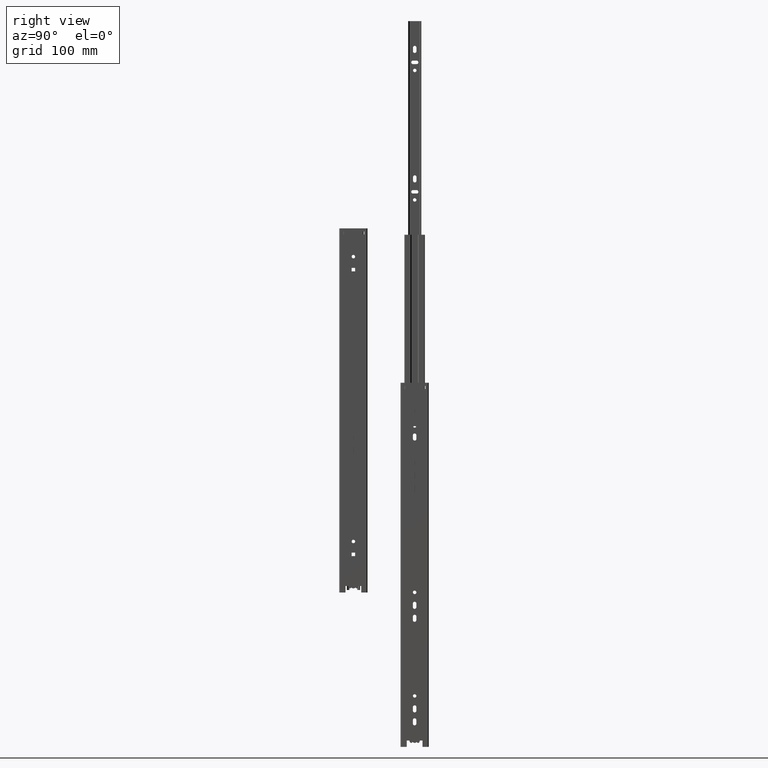
[diagram: clean part render]
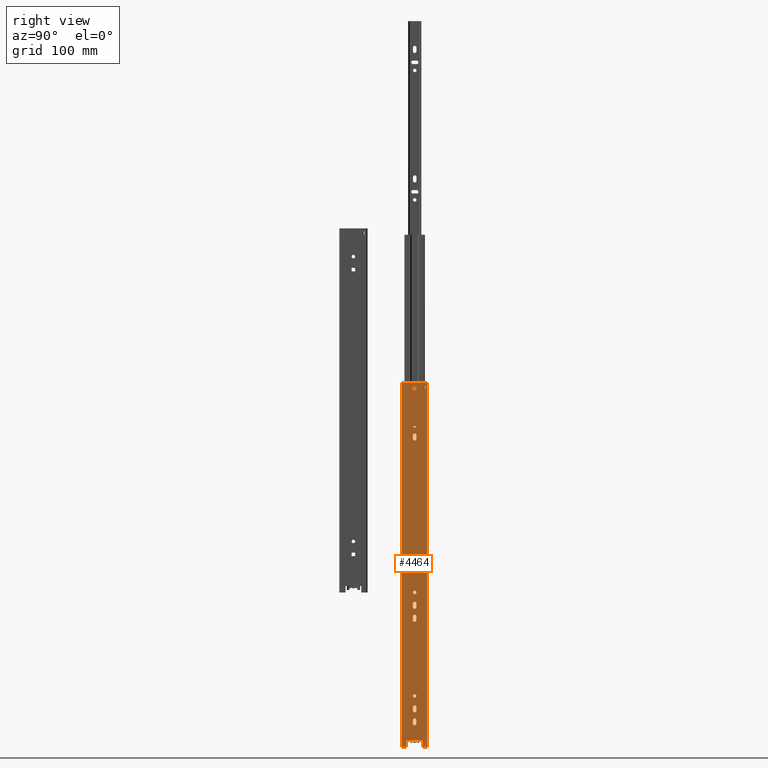
[diagram: same view with one face highlighted and labeled with its STEP entity id]
A machine part, right view. The second image highlights one B-rep face of the part: STEP entity #4464.
In plain terms, the highlighted planar face has unit normal (1, 0, 0).
Its self-contained STEP definition (entity closure, byte-faithful):
#195=FACE_BOUND('',#747,.T.);
#196=FACE_BOUND('',#748,.T.);
#197=FACE_BOUND('',#749,.T.);
#198=FACE_BOUND('',#750,.T.);
#199=FACE_BOUND('',#751,.T.);
#200=FACE_BOUND('',#752,.T.);
#201=FACE_BOUND('',#753,.T.);
#202=FACE_BOUND('',#754,.T.);
#203=FACE_BOUND('',#755,.T.);
#204=FACE_BOUND('',#756,.T.);
#205=FACE_BOUND('',#757,.T.);
#206=FACE_BOUND('',#758,.T.);
#207=FACE_BOUND('',#759,.T.);
#208=FACE_BOUND('',#760,.T.);
#209=FACE_BOUND('',#761,.T.);
#270=CIRCLE('',#4693,2.15);
#271=CIRCLE('',#4696,2.15);
#272=CIRCLE('',#4699,2.15);
#273=CIRCLE('',#4702,2.15);
#274=CIRCLE('',#4705,2.15);
#275=CIRCLE('',#4708,2.15);
#276=CIRCLE('',#4711,2.15);
#277=CIRCLE('',#4714,2.15);
#278=CIRCLE('',#4721,2.15);
#279=CIRCLE('',#4723,2.15);
#280=CIRCLE('',#4725,2.15);
#281=CIRCLE('',#4727,2.15);
#282=CIRCLE('',#4733,2.4);
#283=CIRCLE('',#4735,2.15);
#284=CIRCLE('',#4738,2.15);
#285=CIRCLE('',#4741,2.15);
#286=CIRCLE('',#4744,2.15);
#287=CIRCLE('',#4747,2.15);
#288=CIRCLE('',#4750,2.15);
#289=CIRCLE('',#4753,2.14999999999999);
#290=CIRCLE('',#4756,2.15);
#488=FACE_OUTER_BOUND('',#746,.T.);
#746=EDGE_LOOP('',(#3316,#3317,#3318,#3319,#3320,#3321,#3322,#3323));
#747=EDGE_LOOP('',(#3324,#3325,#3326,#3327));
#748=EDGE_LOOP('',(#3328,#3329,#3330,#3331));
#749=EDGE_LOOP('',(#3332,#3333,#3334,#3335));
#750=EDGE_LOOP('',(#3336,#3337,#3338,#3339));
#751=EDGE_LOOP('',(#3340,#3341,#3342,#3343));
#752=EDGE_LOOP('',(#3344));
#753=EDGE_LOOP('',(#3345));
#754=EDGE_LOOP('',(#3346));
#755=EDGE_LOOP('',(#3347));
#756=EDGE_LOOP('',(#3348,#3349,#3350,#3351));
#757=EDGE_LOOP('',(#3352));
#758=EDGE_LOOP('',(#3353,#3354,#3355,#3356));
#759=EDGE_LOOP('',(#3357,#3358,#3359,#3360));
#760=EDGE_LOOP('',(#3361,#3362,#3363,#3364));
#761=EDGE_LOOP('',(#3365,#3366,#3367,#3368));
#1012=LINE('',#6645,#1476);
#1014=LINE('',#6649,#1478);
#1017=LINE('',#6654,#1481);
#1018=LINE('',#6657,#1482);
#1028=LINE('',#6687,#1492);
#1031=LINE('',#6694,#1495);
#1034=LINE('',#6703,#1498);
#1037=LINE('',#6710,#1501);
#1040=LINE('',#6719,#1504);
#1043=LINE('',#6726,#1507);
#1046=LINE('',#6735,#1510);
#1049=LINE('',#6742,#1513);
#1051=LINE('',#6747,#1515);
#1053=LINE('',#6751,#1517);
#1055=LINE('',#6755,#1519);
#1057=LINE('',#6758,#1521);
#1059=LINE('',#6775,#1523);
#1061=LINE('',#6779,#1525);
#1063=LINE('',#6783,#1527);
#1065=LINE('',#6786,#1529);
#1068=LINE('',#6798,#1532);
#1071=LINE('',#6805,#1535);
#1074=LINE('',#6814,#1538);
#1077=LINE('',#6821,#1541);
#1080=LINE('',#6830,#1544);
#1083=LINE('',#6837,#1547);
#1086=LINE('',#6846,#1550);
#1089=LINE('',#6853,#1553);
#1097=LINE('',#6877,#1561);
#1104=LINE('',#6895,#1568);
#1105=LINE('',#6898,#1569);
#1106=LINE('',#6899,#1570);
#1476=VECTOR('',#5236,19.4999999999977);
#1478=VECTOR('',#5240,7.99999999999997);
#1481=VECTOR('',#5245,7.99999999999997);
#1482=VECTOR('',#5248,6.25000000000089);
#1492=VECTOR('',#5272,4.49999999999996);
#1495=VECTOR('',#5281,4.49999999999996);
#1498=VECTOR('',#5290,4.49999999999999);
#1501=VECTOR('',#5299,4.49999999999999);
#1504=VECTOR('',#5308,4.49999999999998);
#1507=VECTOR('',#5317,4.50000000000001);
#1510=VECTOR('',#5326,4.49999999999999);
#1513=VECTOR('',#5335,4.49999999999999);
#1515=VECTOR('',#5339,4.8);
#1517=VECTOR('',#5343,3.70000000000001);
#1519=VECTOR('',#5347,4.8);
#1521=VECTOR('',#5351,3.70000000000001);
#1523=VECTOR('',#5371,4.8);
#1525=VECTOR('',#5375,3.70000000000001);
#1527=VECTOR('',#5379,4.80000000000001);
#1529=VECTOR('',#5383,3.70000000000001);
#1532=VECTOR('',#5396,4.49999999999999);
#1535=VECTOR('',#5405,4.49999999999999);
#1538=VECTOR('',#5414,4.49999999999999);
#1541=VECTOR('',#5423,4.49999999999996);
#1544=VECTOR('',#5432,4.49999999999999);
#1547=VECTOR('',#5441,4.49999999999999);
#1550=VECTOR('',#5450,4.49999999999996);
#1553=VECTOR('',#5459,4.49999999999996);
#1561=VECTOR('',#5477,6.25000000000089);
#1568=VECTOR('',#5496,450.);
#1569=VECTOR('',#5499,31.9999999999994);
#1570=VECTOR('',#5500,450.);
#1958=VERTEX_POINT('',#6642);
#1959=VERTEX_POINT('',#6644);
#1960=VERTEX_POINT('',#6648);
#1961=VERTEX_POINT('',#6652);
#1962=VERTEX_POINT('',#6656);
#1973=VERTEX_POINT('',#6680);
#1974=VERTEX_POINT('',#6682);
#1975=VERTEX_POINT('',#6686);
#1976=VERTEX_POINT('',#6690);
#1977=VERTEX_POINT('',#6696);
#1978=VERTEX_POINT('',#6698);
#1979=VERTEX_POINT('',#6702);
#1980=VERTEX_POINT('',#6706);
#1981=VERTEX_POINT('',#6712);
#1982=VERTEX_POINT('',#6714);
#1983=VERTEX_POINT('',#6718);
#1984=VERTEX_POINT('',#6722);
#1985=VERTEX_POINT('',#6728);
#1986=VERTEX_POINT('',#6730);
#1987=VERTEX_POINT('',#6734);
#1988=VERTEX_POINT('',#6738);
#1989=VERTEX_POINT('',#6744);
#1990=VERTEX_POINT('',#6746);
#1991=VERTEX_POINT('',#6750);
#1992=VERTEX_POINT('',#6754);
#1993=VERTEX_POINT('',#6760);
#1994=VERTEX_POINT('',#6763);
#1995=VERTEX_POINT('',#6766);
#1996=VERTEX_POINT('',#6769);
#1997=VERTEX_POINT('',#6772);
#1998=VERTEX_POINT('',#6774);
#1999=VERTEX_POINT('',#6778);
#2000=VERTEX_POINT('',#6782);
#2001=VERTEX_POINT('',#6788);
#2002=VERTEX_POINT('',#6791);
#2003=VERTEX_POINT('',#6793);
#2004=VERTEX_POINT('',#6797);
#2005=VERTEX_POINT('',#6801);
#2006=VERTEX_POINT('',#6807);
#2007=VERTEX_POINT('',#6809);
#2008=VERTEX_POINT('',#6813);
#2009=VERTEX_POINT('',#6817);
#2010=VERTEX_POINT('',#6823);
#2011=VERTEX_POINT('',#6825);
#2012=VERTEX_POINT('',#6829);
#2013=VERTEX_POINT('',#6833);
#2014=VERTEX_POINT('',#6839);
#2015=VERTEX_POINT('',#6841);
#2016=VERTEX_POINT('',#6845);
#2017=VERTEX_POINT('',#6849);
#2028=VERTEX_POINT('',#6875);
#2033=VERTEX_POINT('',#6893);
#2034=VERTEX_POINT('',#6897);
#2401=EDGE_CURVE('',#1959,#1958,#1012,.T.);
#2403=EDGE_CURVE('',#1960,#1959,#1014,.T.);
#2406=EDGE_CURVE('',#1958,#1961,#1017,.T.);
#2407=EDGE_CURVE('',#1960,#1962,#1018,.T.);
#2420=EDGE_CURVE('',#1974,#1973,#270,.T.);
#2422=EDGE_CURVE('',#1975,#1974,#1028,.T.);
#2424=EDGE_CURVE('',#1976,#1975,#271,.T.);
#2426=EDGE_CURVE('',#1973,#1976,#1031,.T.);
#2428=EDGE_CURVE('',#1978,#1977,#272,.T.);
#2430=EDGE_CURVE('',#1979,#1978,#1034,.T.);
#2432=EDGE_CURVE('',#1980,#1979,#273,.T.);
#2434=EDGE_CURVE('',#1977,#1980,#1037,.T.);
#2436=EDGE_CURVE('',#1982,#1981,#274,.T.);
#2438=EDGE_CURVE('',#1983,#1982,#1040,.T.);
#2440=EDGE_CURVE('',#1984,#1983,#275,.T.);
#2442=EDGE_CURVE('',#1981,#1984,#1043,.T.);
#2444=EDGE_CURVE('',#1986,#1985,#276,.T.);
#2446=EDGE_CURVE('',#1987,#1986,#1046,.T.);
#2448=EDGE_CURVE('',#1988,#1987,#277,.T.);
#2450=EDGE_CURVE('',#1985,#1988,#1049,.T.);
#2452=EDGE_CURVE('',#1990,#1989,#1051,.T.);
#2454=EDGE_CURVE('',#1991,#1990,#1053,.T.);
#2456=EDGE_CURVE('',#1992,#1991,#1055,.T.);
#2458=EDGE_CURVE('',#1989,#1992,#1057,.T.);
#2459=EDGE_CURVE('',#1993,#1993,#278,.T.);
#2460=EDGE_CURVE('',#1994,#1994,#279,.T.);
#2461=EDGE_CURVE('',#1995,#1995,#280,.T.);
#2462=EDGE_CURVE('',#1996,#1996,#281,.T.);
#2464=EDGE_CURVE('',#1998,#1997,#1059,.T.);
#2466=EDGE_CURVE('',#1999,#1998,#1061,.T.);
#2468=EDGE_CURVE('',#2000,#1999,#1063,.T.);
#2470=EDGE_CURVE('',#1997,#2000,#1065,.T.);
#2471=EDGE_CURVE('',#2001,#2001,#282,.T.);
#2473=EDGE_CURVE('',#2003,#2002,#283,.T.);
#2475=EDGE_CURVE('',#2004,#2003,#1068,.T.);
#2477=EDGE_CURVE('',#2005,#2004,#284,.T.);
#2479=EDGE_CURVE('',#2002,#2005,#1071,.T.);
#2481=EDGE_CURVE('',#2007,#2006,#285,.T.);
#2483=EDGE_CURVE('',#2008,#2007,#1074,.T.);
#2485=EDGE_CURVE('',#2009,#2008,#286,.T.);
#2487=EDGE_CURVE('',#2006,#2009,#1077,.T.);
#2489=EDGE_CURVE('',#2011,#2010,#287,.T.);
#2491=EDGE_CURVE('',#2012,#2011,#1080,.T.);
#2493=EDGE_CURVE('',#2013,#2012,#288,.T.);
#2495=EDGE_CURVE('',#2010,#2013,#1083,.T.);
#2497=EDGE_CURVE('',#2015,#2014,#289,.T.);
#2499=EDGE_CURVE('',#2016,#2015,#1086,.T.);
#2501=EDGE_CURVE('',#2017,#2016,#290,.T.);
#2503=EDGE_CURVE('',#2014,#2017,#1089,.T.);
#2515=EDGE_CURVE('',#2028,#1961,#1097,.T.);
#2524=EDGE_CURVE('',#2028,#2033,#1104,.T.);
#2525=EDGE_CURVE('',#2034,#2033,#1105,.T.);
#2526=EDGE_CURVE('',#1962,#2034,#1106,.T.);
#3316=ORIENTED_EDGE('',*,*,#2406,.T.);
#3317=ORIENTED_EDGE('',*,*,#2515,.F.);
#3318=ORIENTED_EDGE('',*,*,#2524,.T.);
#3319=ORIENTED_EDGE('',*,*,#2525,.F.);
#3320=ORIENTED_EDGE('',*,*,#2526,.F.);
#3321=ORIENTED_EDGE('',*,*,#2407,.F.);
#3322=ORIENTED_EDGE('',*,*,#2403,.T.);
#3323=ORIENTED_EDGE('',*,*,#2401,.T.);
#3324=ORIENTED_EDGE('',*,*,#2424,.T.);
#3325=ORIENTED_EDGE('',*,*,#2422,.T.);
#3326=ORIENTED_EDGE('',*,*,#2420,.T.);
#3327=ORIENTED_EDGE('',*,*,#2426,.T.);
#3328=ORIENTED_EDGE('',*,*,#2432,.T.);
#3329=ORIENTED_EDGE('',*,*,#2430,.T.);
#3330=ORIENTED_EDGE('',*,*,#2428,.T.);
#3331=ORIENTED_EDGE('',*,*,#2434,.T.);
#3332=ORIENTED_EDGE('',*,*,#2440,.T.);
#3333=ORIENTED_EDGE('',*,*,#2438,.T.);
#3334=ORIENTED_EDGE('',*,*,#2436,.T.);
#3335=ORIENTED_EDGE('',*,*,#2442,.T.);
#3336=ORIENTED_EDGE('',*,*,#2448,.T.);
#3337=ORIENTED_EDGE('',*,*,#2446,.T.);
#3338=ORIENTED_EDGE('',*,*,#2444,.T.);
#3339=ORIENTED_EDGE('',*,*,#2450,.T.);
#3340=ORIENTED_EDGE('',*,*,#2456,.T.);
#3341=ORIENTED_EDGE('',*,*,#2454,.T.);
#3342=ORIENTED_EDGE('',*,*,#2452,.T.);
#3343=ORIENTED_EDGE('',*,*,#2458,.T.);
#3344=ORIENTED_EDGE('',*,*,#2459,.T.);
#3345=ORIENTED_EDGE('',*,*,#2460,.T.);
#3346=ORIENTED_EDGE('',*,*,#2461,.T.);
#3347=ORIENTED_EDGE('',*,*,#2462,.T.);
#3348=ORIENTED_EDGE('',*,*,#2468,.T.);
#3349=ORIENTED_EDGE('',*,*,#2466,.T.);
#3350=ORIENTED_EDGE('',*,*,#2464,.T.);
#3351=ORIENTED_EDGE('',*,*,#2470,.T.);
#3352=ORIENTED_EDGE('',*,*,#2471,.T.);
#3353=ORIENTED_EDGE('',*,*,#2477,.T.);
#3354=ORIENTED_EDGE('',*,*,#2475,.T.);
#3355=ORIENTED_EDGE('',*,*,#2473,.T.);
#3356=ORIENTED_EDGE('',*,*,#2479,.T.);
#3357=ORIENTED_EDGE('',*,*,#2485,.T.);
#3358=ORIENTED_EDGE('',*,*,#2483,.T.);
#3359=ORIENTED_EDGE('',*,*,#2481,.T.);
#3360=ORIENTED_EDGE('',*,*,#2487,.T.);
#3361=ORIENTED_EDGE('',*,*,#2493,.T.);
#3362=ORIENTED_EDGE('',*,*,#2491,.T.);
#3363=ORIENTED_EDGE('',*,*,#2489,.T.);
#3364=ORIENTED_EDGE('',*,*,#2495,.T.);
#3365=ORIENTED_EDGE('',*,*,#2501,.T.);
#3366=ORIENTED_EDGE('',*,*,#2499,.T.);
#3367=ORIENTED_EDGE('',*,*,#2497,.T.);
#3368=ORIENTED_EDGE('',*,*,#2503,.T.);
#4291=PLANE('',#4769);
#4464=ADVANCED_FACE('',(#488,#195,#196,#197,#198,#199,#200,#201,#202,#203,
#204,#205,#206,#207,#208,#209),#4291,.T.);
#4693=AXIS2_PLACEMENT_3D('',#6683,#5267,#5268);
#4696=AXIS2_PLACEMENT_3D('',#6691,#5276,#5277);
#4699=AXIS2_PLACEMENT_3D('',#6699,#5285,#5286);
#4702=AXIS2_PLACEMENT_3D('',#6707,#5294,#5295);
#4705=AXIS2_PLACEMENT_3D('',#6715,#5303,#5304);
#4708=AXIS2_PLACEMENT_3D('',#6723,#5312,#5313);
#4711=AXIS2_PLACEMENT_3D('',#6731,#5321,#5322);
#4714=AXIS2_PLACEMENT_3D('',#6739,#5330,#5331);
#4721=AXIS2_PLACEMENT_3D('',#6761,#5354,#5355);
#4723=AXIS2_PLACEMENT_3D('',#6764,#5358,#5359);
#4725=AXIS2_PLACEMENT_3D('',#6767,#5362,#5363);
#4727=AXIS2_PLACEMENT_3D('',#6770,#5366,#5367);
#4733=AXIS2_PLACEMENT_3D('',#6789,#5386,#5387);
#4735=AXIS2_PLACEMENT_3D('',#6794,#5391,#5392);
#4738=AXIS2_PLACEMENT_3D('',#6802,#5400,#5401);
#4741=AXIS2_PLACEMENT_3D('',#6810,#5409,#5410);
#4744=AXIS2_PLACEMENT_3D('',#6818,#5418,#5419);
#4747=AXIS2_PLACEMENT_3D('',#6826,#5427,#5428);
#4750=AXIS2_PLACEMENT_3D('',#6834,#5436,#5437);
#4753=AXIS2_PLACEMENT_3D('',#6842,#5445,#5446);
#4756=AXIS2_PLACEMENT_3D('',#6850,#5454,#5455);
#4769=AXIS2_PLACEMENT_3D('',#6896,#5497,#5498);
#5236=DIRECTION('',(0.,1.,0.));
#5240=DIRECTION('',(0.,-5.5511151231258E-16,1.));
#5245=DIRECTION('',(0.,0.,-1.));
#5248=DIRECTION('',(0.,-1.,0.));
#5267=DIRECTION('center_axis',(-1.,0.,0.));
#5268=DIRECTION('ref_axis',(0.,1.,0.));
#5272=DIRECTION('',(0.,-4.93432455388963E-16,1.));
#5276=DIRECTION('center_axis',(-1.,0.,0.));
#5277=DIRECTION('ref_axis',(0.,-1.,0.));
#5281=DIRECTION('',(0.,9.86864910777926E-16,-1.));
#5285=DIRECTION('center_axis',(-1.,0.,0.));
#5286=DIRECTION('ref_axis',(0.,1.,0.));
#5290=DIRECTION('',(0.,4.93432455388959E-16,1.));
#5294=DIRECTION('center_axis',(-1.,0.,0.));
#5295=DIRECTION('ref_axis',(0.,-1.,0.));
#5299=DIRECTION('',(0.,0.,-1.));
#5303=DIRECTION('center_axis',(-1.,0.,0.));
#5304=DIRECTION('ref_axis',(0.,1.,8.26212483441975E-15));
#5308=DIRECTION('',(0.,1.48029736616688E-15,1.));
#5312=DIRECTION('center_axis',(-1.,0.,0.));
#5313=DIRECTION('ref_axis',(0.,-1.,0.));
#5317=DIRECTION('',(0.,-1.97372982155583E-15,-1.));
#5321=DIRECTION('center_axis',(-1.,0.,0.));
#5322=DIRECTION('ref_axis',(0.,1.,0.));
#5326=DIRECTION('',(0.,1.97372982155584E-15,-1.));
#5330=DIRECTION('center_axis',(-1.,0.,0.));
#5331=DIRECTION('ref_axis',(0.,-1.,0.));
#5335=DIRECTION('',(0.,-1.48029736616687E-15,1.));
#5339=DIRECTION('',(0.,-1.,0.));
#5343=DIRECTION('',(0.,0.,-1.));
#5347=DIRECTION('',(0.,1.,5.78241158658936E-16));
#5351=DIRECTION('',(0.,0.,1.));
#5354=DIRECTION('center_axis',(-1.,0.,0.));
#5355=DIRECTION('ref_axis',(0.,0.,1.));
#5358=DIRECTION('center_axis',(-1.,0.,0.));
#5359=DIRECTION('ref_axis',(0.,0.,1.));
#5362=DIRECTION('center_axis',(-1.,0.,0.));
#5363=DIRECTION('ref_axis',(0.,0.,1.));
#5366=DIRECTION('center_axis',(-1.,0.,0.));
#5367=DIRECTION('ref_axis',(0.,0.,1.));
#5371=DIRECTION('',(0.,-1.,2.31296463463574E-16));
#5375=DIRECTION('',(0.,-1.20024110770287E-15,-1.));
#5379=DIRECTION('',(0.,1.,1.15648231731787E-16));
#5383=DIRECTION('',(0.,0.,1.));
#5386=DIRECTION('center_axis',(-1.,0.,0.));
#5387=DIRECTION('ref_axis',(0.,0.,1.));
#5391=DIRECTION('center_axis',(-1.,0.,0.));
#5392=DIRECTION('ref_axis',(0.,1.,0.));
#5396=DIRECTION('',(0.,4.93432455388958E-16,-1.));
#5400=DIRECTION('center_axis',(-1.,0.,0.));
#5401=DIRECTION('ref_axis',(0.,-1.,-4.13106241720989E-15));
#5405=DIRECTION('',(0.,0.,1.));
#5409=DIRECTION('center_axis',(-1.,0.,0.));
#5410=DIRECTION('ref_axis',(0.,1.,-1.65242496688395E-14));
#5414=DIRECTION('',(0.,0.,-1.));
#5418=DIRECTION('center_axis',(-1.,0.,0.));
#5419=DIRECTION('ref_axis',(0.,-1.,-8.26212483441976E-15));
#5423=DIRECTION('',(0.,0.,1.));
#5427=DIRECTION('center_axis',(-1.,0.,0.));
#5428=DIRECTION('ref_axis',(0.,1.,0.));
#5432=DIRECTION('',(0.,0.,-1.));
#5436=DIRECTION('center_axis',(-1.,0.,0.));
#5437=DIRECTION('ref_axis',(0.,-1.,0.));
#5441=DIRECTION('',(0.,0.,1.));
#5445=DIRECTION('center_axis',(-1.,0.,0.));
#5446=DIRECTION('ref_axis',(0.,1.,0.));
#5450=DIRECTION('',(0.,-4.93432455388963E-15,-1.));
#5454=DIRECTION('center_axis',(-1.,0.,0.));
#5455=DIRECTION('ref_axis',(0.,-1.,0.));
#5459=DIRECTION('',(0.,9.86864910777926E-15,1.));
#5477=DIRECTION('',(0.,-1.,0.));
#5496=DIRECTION('',(0.,0.,1.));
#5497=DIRECTION('center_axis',(1.,0.,0.));
#5498=DIRECTION('ref_axis',(0.,1.,0.));
#5499=DIRECTION('',(0.,1.,0.));
#5500=DIRECTION('',(0.,0.,1.));
#6642=CARTESIAN_POINT('',(2.05129643338537,36.3993539975582,-217.));
#6644=CARTESIAN_POINT('',(2.05129643338537,16.8993539975605,-217.));
#6645=CARTESIAN_POINT('',(2.05129643338537,13.7743539975601,-217.));
#6648=CARTESIAN_POINT('',(2.05129643338537,16.8993539975605,-225.));
#6649=CARTESIAN_POINT('',(2.05129643338537,16.8993539975605,-112.5));
#6652=CARTESIAN_POINT('',(2.05129643338537,36.3993539975582,-225.));
#6654=CARTESIAN_POINT('',(2.05129643338537,36.3993539975582,-108.5));
#6656=CARTESIAN_POINT('',(2.05129643338537,10.6493539975597,-225.));
#6657=CARTESIAN_POINT('',(2.05129643338537,10.6493539975597,-225.));
#6680=CARTESIAN_POINT('',(2.05129643338537,28.7993539975594,-175.75));
#6682=CARTESIAN_POINT('',(2.05129643338537,24.4993539975596,-175.75));
#6683=CARTESIAN_POINT('Origin',(2.05129643338537,26.6493539975594,-175.75));
#6686=CARTESIAN_POINT('',(2.05129643338537,24.4993539975596,-180.25));
#6687=CARTESIAN_POINT('',(2.05129643338537,24.4993539975596,-90.125));
#6690=CARTESIAN_POINT('',(2.05129643338537,28.7993539975594,-180.25));
#6691=CARTESIAN_POINT('Origin',(2.05129643338537,26.6493539975594,-180.25));
#6694=CARTESIAN_POINT('',(2.05129643338537,28.7993539975593,-87.875));
#6696=CARTESIAN_POINT('',(2.05129643338537,28.7993539975594,-47.75));
#6698=CARTESIAN_POINT('',(2.05129643338537,24.4993539975594,-47.75));
#6699=CARTESIAN_POINT('Origin',(2.05129643338537,26.6493539975594,-47.75));
#6702=CARTESIAN_POINT('',(2.05129643338537,24.4993539975594,-52.25));
#6703=CARTESIAN_POINT('',(2.05129643338537,24.4993539975594,-26.125));
#6706=CARTESIAN_POINT('',(2.05129643338537,28.7993539975594,-52.25));
#6707=CARTESIAN_POINT('Origin',(2.05129643338537,26.6493539975594,-52.25));
#6710=CARTESIAN_POINT('',(2.05129643338537,28.7993539975594,-23.875));
#6712=CARTESIAN_POINT('',(2.05129643338537,28.7993539975594,112.25));
#6714=CARTESIAN_POINT('',(2.05129643338537,24.4993539975594,112.25));
#6715=CARTESIAN_POINT('Origin',(2.05129643338537,26.6493539975594,112.25));
#6718=CARTESIAN_POINT('',(2.05129643338537,24.4993539975594,107.75));
#6719=CARTESIAN_POINT('',(2.05129643338537,24.4993539975593,53.875));
#6722=CARTESIAN_POINT('',(2.05129643338537,28.7993539975594,107.75));
#6723=CARTESIAN_POINT('Origin',(2.05129643338537,26.6493539975594,107.75));
#6726=CARTESIAN_POINT('',(2.05129643338537,28.7993539975593,56.125));
#6728=CARTESIAN_POINT('',(2.05129643338537,24.4993539975594,171.75));
#6730=CARTESIAN_POINT('',(2.05129643338537,28.7993539975594,171.75));
#6731=CARTESIAN_POINT('Origin',(2.05129643338537,26.6493539975594,171.75));
#6734=CARTESIAN_POINT('',(2.05129643338537,28.7993539975594,176.25));
#6735=CARTESIAN_POINT('',(2.05129643338537,28.7993539975595,88.125));
#6738=CARTESIAN_POINT('',(2.05129643338537,24.4993539975594,176.25));
#6739=CARTESIAN_POINT('Origin',(2.05129643338537,26.6493539975594,176.25));
#6742=CARTESIAN_POINT('',(2.05129643338537,24.4993539975595,85.875));
#6744=CARTESIAN_POINT('',(2.05129643338537,14.1493539975597,217.3));
#6746=CARTESIAN_POINT('',(2.05129643338537,18.9493539975597,217.3));
#6747=CARTESIAN_POINT('',(2.05129643338537,14.7993539975597,217.3));
#6750=CARTESIAN_POINT('',(2.05129643338537,18.9493539975597,221.));
#6751=CARTESIAN_POINT('',(2.05129643338537,18.9493539975597,110.5));
#6754=CARTESIAN_POINT('',(2.05129643338537,14.1493539975597,221.));
#6755=CARTESIAN_POINT('',(2.05129643338537,12.3993539975596,221.));
#6758=CARTESIAN_POINT('',(2.05129643338537,14.1493539975597,108.65));
#6760=CARTESIAN_POINT('',(2.05129643338537,26.6493539975594,-164.15));
#6761=CARTESIAN_POINT('Origin',(2.05129643338537,26.6493539975594,-162.));
#6763=CARTESIAN_POINT('',(2.05129643338537,26.6493539975594,123.85));
#6764=CARTESIAN_POINT('Origin',(2.05129643338537,26.6493539975594,126.));
#6766=CARTESIAN_POINT('',(2.05129643338537,26.6493539975594,187.85));
#6767=CARTESIAN_POINT('Origin',(2.05129643338537,26.6493539975594,190.));
#6769=CARTESIAN_POINT('',(2.05129643338537,26.6493539975594,-36.15));
#6770=CARTESIAN_POINT('Origin',(2.05129643338537,26.6493539975594,-34.));
#6772=CARTESIAN_POINT('',(2.05129643338537,35.3493539975582,217.3));
#6774=CARTESIAN_POINT('',(2.05129643338537,40.1493539975582,217.3));
#6775=CARTESIAN_POINT('',(2.05129643338537,25.399353997559,217.3));
#6778=CARTESIAN_POINT('',(2.05129643338537,40.1493539975582,221.));
#6779=CARTESIAN_POINT('',(2.05129643338537,40.1493539975581,110.5));
#6782=CARTESIAN_POINT('',(2.05129643338537,35.3493539975582,221.));
#6783=CARTESIAN_POINT('',(2.05129643338537,22.9993539975589,221.));
#6786=CARTESIAN_POINT('',(2.05129643338537,35.3493539975582,108.65));
#6788=CARTESIAN_POINT('',(2.05129643338537,26.6493539975594,215.2));
#6789=CARTESIAN_POINT('Origin',(2.05129643338537,26.6493539975594,217.6));
#6791=CARTESIAN_POINT('',(2.05129643338537,24.4993539975594,155.75));
#6793=CARTESIAN_POINT('',(2.05129643338537,28.7993539975594,155.75));
#6794=CARTESIAN_POINT('Origin',(2.05129643338537,26.6493539975594,155.75));
#6797=CARTESIAN_POINT('',(2.05129643338537,28.7993539975594,160.25));
#6798=CARTESIAN_POINT('',(2.05129643338537,28.7993539975594,80.125));
#6801=CARTESIAN_POINT('',(2.05129643338537,24.4993539975594,160.25));
#6802=CARTESIAN_POINT('Origin',(2.05129643338537,26.6493539975594,160.25));
#6805=CARTESIAN_POINT('',(2.05129643338537,24.4993539975594,77.875));
#6807=CARTESIAN_POINT('',(2.05129643338537,24.4993539975594,91.7500000000001));
#6809=CARTESIAN_POINT('',(2.05129643338537,28.7993539975594,91.75));
#6810=CARTESIAN_POINT('Origin',(2.05129643338537,26.6493539975594,91.75));
#6813=CARTESIAN_POINT('',(2.05129643338537,28.7993539975594,96.25));
#6814=CARTESIAN_POINT('',(2.05129643338537,28.7993539975594,48.125));
#6817=CARTESIAN_POINT('',(2.05129643338537,24.4993539975594,96.25));
#6818=CARTESIAN_POINT('Origin',(2.05129643338537,26.6493539975594,96.25));
#6821=CARTESIAN_POINT('',(2.05129643338537,24.4993539975594,45.875));
#6823=CARTESIAN_POINT('',(2.05129643338537,24.4993539975594,-68.2500000000001));
#6825=CARTESIAN_POINT('',(2.05129643338537,28.7993539975594,-68.2500000000001));
#6826=CARTESIAN_POINT('Origin',(2.05129643338537,26.6493539975594,-68.2500000000001));
#6829=CARTESIAN_POINT('',(2.05129643338537,28.7993539975594,-63.7500000000001));
#6830=CARTESIAN_POINT('',(2.05129643338537,28.7993539975594,-31.875));
#6833=CARTESIAN_POINT('',(2.05129643338537,24.4993539975594,-63.7500000000001));
#6834=CARTESIAN_POINT('Origin',(2.05129643338537,26.6493539975594,-63.7500000000001));
#6837=CARTESIAN_POINT('',(2.05129643338537,24.4993539975594,-34.125));
#6839=CARTESIAN_POINT('',(2.05129643338537,24.4993539975599,-196.25));
#6841=CARTESIAN_POINT('',(2.05129643338537,28.7993539975594,-196.25));
#6842=CARTESIAN_POINT('Origin',(2.05129643338537,26.6493539975594,-196.25));
#6845=CARTESIAN_POINT('',(2.05129643338537,28.7993539975594,-191.75));
#6846=CARTESIAN_POINT('',(2.05129643338537,28.7993539975599,-95.8750000000001));
#6849=CARTESIAN_POINT('',(2.05129643338537,24.49935399756,-191.75));
#6850=CARTESIAN_POINT('Origin',(2.05129643338537,26.6493539975594,-191.75));
#6853=CARTESIAN_POINT('',(2.05129643338537,24.4993539975609,-98.1250000000001));
#6875=CARTESIAN_POINT('',(2.05129643338537,42.6493539975591,-225.));
#6877=CARTESIAN_POINT('',(2.05129643338537,10.6493539975597,-225.));
#6893=CARTESIAN_POINT('',(2.05129643338537,42.6493539975591,225.));
#6895=CARTESIAN_POINT('',(2.05129643338537,42.6493539975591,0.));
#6896=CARTESIAN_POINT('Origin',(2.05129643338537,10.6493539975597,0.));
#6897=CARTESIAN_POINT('',(2.05129643338537,10.6493539975597,225.));
#6898=CARTESIAN_POINT('',(2.05129643338537,10.6493539975597,225.));
#6899=CARTESIAN_POINT('',(2.05129643338537,10.6493539975597,0.));